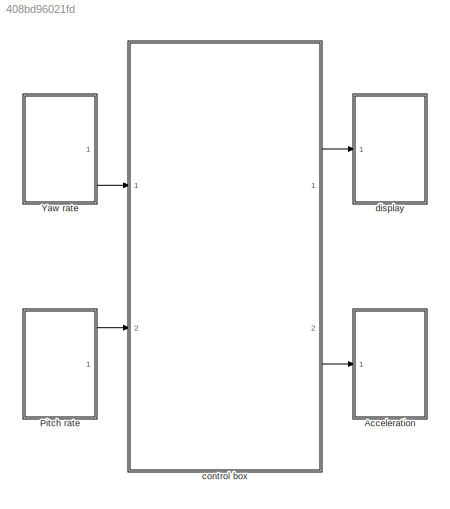
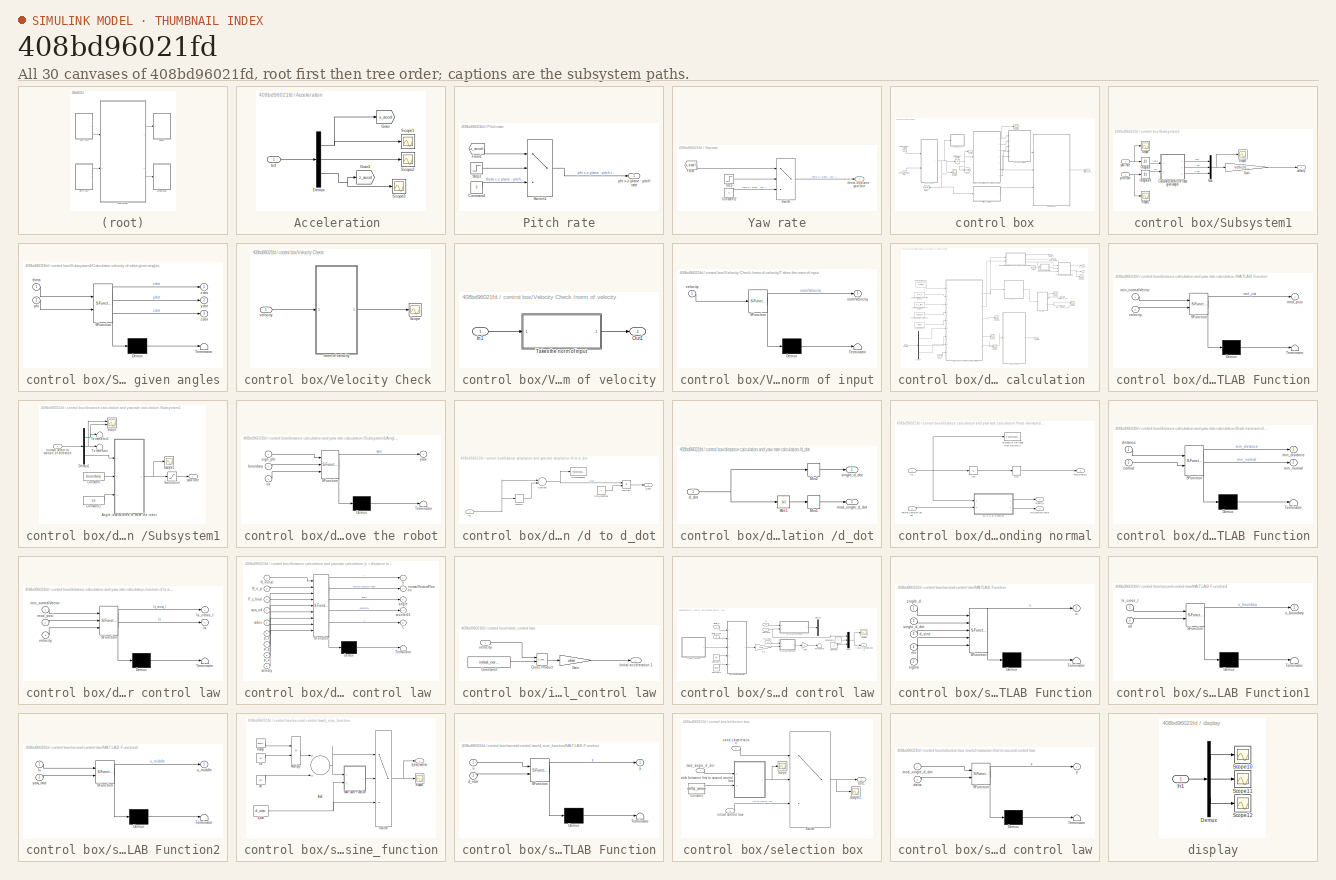
[diagram: thumbnail index - all 30 canvases of the model, root first then tree order]
MODEL slx_408bd96021fd
KIND model
CONFIG AbsTol = auto
CONFIG EnableMultiTasking = off
CONFIG FixedStep = 0.1
CONFIG MaxStep = auto
CONFIG MinStep = auto
CONFIG RelTol = 1e-3
CONFIG SampleTimeConstraint = Unconstrained
CONFIG Solver = FixedStepAuto
CONFIG SolverName = FixedStepAuto
CONFIG StartTime = 0.0
CONFIG StopTime = 50
BLOCK [SubSystem] Acceleration 
  Ports = [1]
  RequestExecContextInheritance = off
BLOCK [Demux] Acceleration /Demux
  DisplayOption = bar
  Outputs = 3
  Ports = [1, 3]
BLOCK [Goto] Acceleration /Goto
  GotoTag = x_accel
  TagVisibility = global
BLOCK [Goto] Acceleration /Goto1
  GotoTag = z_accel
  TagVisibility = global
BLOCK [Inport] Acceleration /In1
  IconDisplay = Port number
BLOCK [Scope] Acceleration /Scope1
  Floating = off
  NumInputPorts = 1
  Ports = [1]
  ScopeSpecificationString = Simulink.scopes.TimeScopeBlockCfg('CurrentConfiguration', extmgr.ConfigurationSet(extmgr.Configuration('Core','General UI',true),extmgr.Configuration('Core','Source UI',true),extmgr.Configuration('Sources','WiredSimulink',true,'DataLoggingVariableName','ScopeData1','DataLogging',true,'DataLoggingSaveFormat','StructureWithTime'),extmgr.Configuration('Visuals','Time Domain',true,'SerializedDisplays'...<+1502ch>
BLOCK [Scope] Acceleration /Scope2
  Floating = off
  NumInputPorts = 1
  Ports = [1]
  ScopeSpecificationString = Simulink.scopes.TimeScopeBlockCfg('CurrentConfiguration', extmgr.ConfigurationSet(extmgr.Configuration('Core','General UI',true),extmgr.Configuration('Core','Source UI',true),extmgr.Configuration('Sources','WiredSimulink',true,'DataLoggingVariableName','ScopeData2','DataLogging',true,'DataLoggingSaveFormat','StructureWithTime'),extmgr.Configuration('Visuals','Time Domain',true,'SerializedDisplays'...<+1520ch>
BLOCK [Scope] Acceleration /Scope3
  Floating = off
  NumInputPorts = 1
  Ports = [1]
  ScopeSpecificationString = Simulink.scopes.TimeScopeBlockCfg('CurrentConfiguration', extmgr.ConfigurationSet(extmgr.Configuration('Core','General UI',true),extmgr.Configuration('Core','Source UI',true),extmgr.Configuration('Sources','WiredSimulink',true,'DataLoggingVariableName','ScopeData3','DataLogging',true,'DataLoggingSaveFormat','StructureWithTime'),extmgr.Configuration('Visuals','Time Domain',true,'SerializedDisplays'...<+1514ch>
BLOCK [SubSystem] Pitch rate
  Ports = [0, 1]
  RequestExecContextInheritance = off
BLOCK [Constant] Pitch rate/Constant4
  Value = 0
BLOCK [From] Pitch rate/From1
  GotoTag = z_accel
  TagVisibility = global
BLOCK [Step] Pitch rate/Step1
  SampleTime = 0
  Time = 0.1
BLOCK [Switch] Pitch rate/Switch1
  Criteria = u2 > Threshold
  InputSameDT = off
  SaturateOnIntegerOverflow = off
BLOCK [Outport] Pitch rate/phi x-z plane : pitch rate
  IconDisplay = Port number
  VectorParamsAs1DForOutWhenUnconnected = off
BLOCK [SubSystem] Yaw rate
  Ports = [0, 1]
  RequestExecContextInheritance = off
BLOCK [Constant] Yaw rate/Constant2
  Value = 0
BLOCK [From] Yaw rate/From
  GotoTag = x_accel
  TagVisibility = global
BLOCK [Step] Yaw rate/Step
  SampleTime = 0
  Time = 0.1
BLOCK [Switch] Yaw rate/Switch
  Criteria = u2 > Threshold
  InputSameDT = off
  SaturateOnIntegerOverflow = off
BLOCK [Outport] Yaw rate/theta x-y plane : yaw rate
  IconDisplay = Port number
  VectorParamsAs1DForOutWhenUnconnected = off
BLOCK [SubSystem] control box
  Ports = [2, 2]
  RequestExecContextInheritance = off
BLOCK [Goto] control box/Goto
  GotoTag = position
  TagVisibility = global
BLOCK [Goto] control box/Goto1
  GotoTag = velocity
  TagVisibility = global
BLOCK [Integrator] control box/Integrate to get position
  InitialCondition = [x_0 z_0 y_0]
  Ports = [1, 1]
BLOCK [Outport] control box/Position
  IconDisplay = Port number
  VectorParamsAs1DForOutWhenUnconnected = off
BLOCK [Scope] control box/Scope
  Floating = off
  NumInputPorts = 1
  Ports = [1]
  ScopeSpecificationString = Simulink.scopes.TimeScopeBlockCfg('CurrentConfiguration', extmgr.ConfigurationSet(extmgr.Configuration('Core','General UI',true),extmgr.Configuration('Core','Source UI',true),extmgr.Configuration('Sources','WiredSimulink',true,'DataLoggingVariableName','ScopeData1'),extmgr.Configuration('Visuals','Time Domain',true,'SerializedDisplays',{struct('MinYLimReal','-1.24952','MaxYLimReal','1.24995','YLab...<+1393ch>
BLOCK [Scope] control box/Scope1
  Floating = off
  NumInputPorts = 1
  Ports = [1]
  ScopeSpecificationString = Simulink.scopes.TimeScopeBlockCfg('CurrentConfiguration', extmgr.ConfigurationSet(extmgr.Configuration('Core','General UI',true),extmgr.Configuration('Core','Source UI',true),extmgr.Configuration('Sources','WiredSimulink',true,'DataLoggingVariableName','ScopeData4'),extmgr.Configuration('Visuals','Time Domain',true,'SerializedDisplays',{struct('MinYLimReal','-27.05579','MaxYLimReal','11.13193','YL...<+1523ch>
BLOCK [SubSystem] control box/Subsystem1
  Ports = [2, 1]
  RequestExecContextInheritance = off
BLOCK [SubSystem] control box/Subsystem1/Calculates velocity of robot given angles
  ErrorFcn = Stateflow.Translate.translate
  PermitHierarchicalResolution = ExplicitOnly
  Ports = [2, 3]
  RequestExecContextInheritance = off
  SFBlockType = MATLAB Function
  TreatAsAtomicUnit = on
BLOCK [Demux] control box/Subsystem1/Calculates velocity of robot given angles/ Demux 
  Outputs = 1
  Ports = [1, 1]
BLOCK [S-Function] control box/Subsystem1/Calculates velocity of robot given angles/ SFunction 
  EnableBusSupport = on
  FunctionName = sf_sfun
  PortCounts = [2 4]
  Ports = [2, 4]
  SFcnIsStateOwnerBlock = off
  SFunctionDeploymentMode = off
  Tag = Stateflow S-Function test_01_3d_veh_piby567_2018 4
BLOCK [Terminator] control box/Subsystem1/Calculates velocity of robot given angles/ Terminator 
BLOCK [Inport] control box/Subsystem1/Calculates velocity of robot given angles/phi
  IconDisplay = Port number
  Port = 2
BLOCK [Inport] control box/Subsystem1/Calculates velocity of robot given angles/theta
  IconDisplay = Port number
BLOCK [Outport] control box/Subsystem1/Calculates velocity of robot given angles/xdot
  IconDisplay = Port number
BLOCK [Outport] control box/Subsystem1/Calculates velocity of robot given angles/ydot
  IconDisplay = Port number
  Port = 2
BLOCK [Outport] control box/Subsystem1/Calculates velocity of robot given angles/zdot
  IconDisplay = Port number
  Port = 3
BLOCK [Gain] control box/Subsystem1/Gain
  Gain = vehicle_velocity
  OutDataTypeStr = Inherit: Inherit via internal rule
  ParamDataTypeStr = Inherit: Inherit via internal rule
  SaturateOnIntegerOverflow = off
BLOCK [Integrator] control box/Subsystem1/Integrator
  Ports = [1, 1]
BLOCK [Integrator] control box/Subsystem1/Integrator4
  Ports = [1, 1]
BLOCK [Mux] control box/Subsystem1/Mux
  DisplayOption = bar
  Inputs = 3
  Ports = [3, 1]
BLOCK [Scope] control box/Subsystem1/Scope
  Floating = off
  NumInputPorts = 1
  Ports = [1]
  ScopeSpecificationString = Simulink.scopes.TimeScopeBlockCfg('CurrentConfiguration', extmgr.ConfigurationSet(extmgr.Configuration('Core','General UI',true),extmgr.Configuration('Core','Source UI',true),extmgr.Configuration('Sources','WiredSimulink',true,'DataLoggingVariableName','ScopeData6'),extmgr.Configuration('Visuals','Time Domain',true,'SerializedDisplays',{struct('MinYLimReal','-1.25','MaxYLimReal','1.25','YLabelReal...<+1350ch>
BLOCK [Scope] control box/Subsystem1/Scope1
  Floating = off
  NumInputPorts = 1
  Ports = [1]
  ScopeSpecificationString = Simulink.scopes.TimeScopeBlockCfg('CurrentConfiguration', extmgr.ConfigurationSet(extmgr.Configuration('Core','General UI',true),extmgr.Configuration('Core','Source UI',true),extmgr.Configuration('Sources','WiredSimulink',true,'DataLoggingVariableName','ScopeData7'),extmgr.Configuration('Visuals','Time Domain',true,'SerializedDisplays',{struct('MinYLimReal','-1.00000','MaxYLimReal','1.00000','YLab...<+1369ch>
BLOCK [Scope] control box/Subsystem1/Scope2
  Floating = off
  NumInputPorts = 1
  Ports = [1]
  ScopeSpecificationString = Simulink.scopes.TimeScopeBlockCfg('CurrentConfiguration', extmgr.ConfigurationSet(extmgr.Configuration('Core','General UI',true),extmgr.Configuration('Core','Source UI',true),extmgr.Configuration('Sources','WiredSimulink',true,'DataLoggingVariableName','ScopeData1'),extmgr.Configuration('Visuals','Time Domain',true,'SerializedDisplays',{struct('MinYLimReal','-1.24975','MaxYLimReal','1.24997','YLab...<+1402ch>
BLOCK [Inport] control box/Subsystem1/pitch rate
  IconDisplay = Port number
  Port = 2
BLOCK [Outport] control box/Subsystem1/velocity
  IconDisplay = Port number
  VectorParamsAs1DForOutWhenUnconnected = off
BLOCK [Inport] control box/Subsystem1/yaw rate 
  IconDisplay = Port number
BLOCK [SubSystem] control box/Velocity Check 
  Ports = [1]
  RequestExecContextInheritance = off
BLOCK [Scope] control box/Velocity Check /Scope
  Floating = off
  NumInputPorts = 1
  Ports = [1]
  ScopeSpecificationString = Simulink.scopes.TimeScopeBlockCfg('CurrentConfiguration', extmgr.ConfigurationSet(extmgr.Configuration('Core','General UI',true),extmgr.Configuration('Core','Source UI',true),extmgr.Configuration('Sources','WiredSimulink',true),extmgr.Configuration('Visuals','Time Domain',true,'SerializedDisplays',{struct('MinYLimReal','0.9','MaxYLimReal','2.00000','YLabelReal','','MinYLimMag','0.9','MaxYLimMag','...<+1398ch>
BLOCK [SubSystem] control box/Velocity Check /norm of velocity
  Ports = [1, 1]
  RequestExecContextInheritance = off
BLOCK [Inport] control box/Velocity Check /norm of velocity/In1
  IconDisplay = Port number
BLOCK [Outport] control box/Velocity Check /norm of velocity/Out1
  IconDisplay = Port number
  VectorParamsAs1DForOutWhenUnconnected = off
BLOCK [SubSystem] control box/Velocity Check /norm of velocity/Takes the norm of input
  ErrorFcn = Stateflow.Translate.translate
  PermitHierarchicalResolution = ExplicitOnly
  Ports = [1, 1]
  RequestExecContextInheritance = off
  SFBlockType = MATLAB Function
  TreatAsAtomicUnit = on
BLOCK [Demux] control box/Velocity Check /norm of velocity/Takes the norm of input/ Demux 
  Outputs = 1
  Ports = [1, 1]
BLOCK [S-Function] control box/Velocity Check /norm of velocity/Takes the norm of input/ SFunction 
  EnableBusSupport = on
  FunctionName = sf_sfun
  PortCounts = [1 2]
  Ports = [1, 2]
  SFcnIsStateOwnerBlock = off
  SFunctionDeploymentMode = off
  Tag = Stateflow S-Function test_01_3d_veh_piby567_2018 8
BLOCK [Terminator] control box/Velocity Check /norm of velocity/Takes the norm of input/ Terminator 
BLOCK [Outport] control box/Velocity Check /norm of velocity/Takes the norm of input/normVelocity
  IconDisplay = Port number
BLOCK [Inport] control box/Velocity Check /norm of velocity/Takes the norm of input/velocity
  IconDisplay = Port number
BLOCK [Inport] control box/Velocity Check /velocity
  IconDisplay = Port number
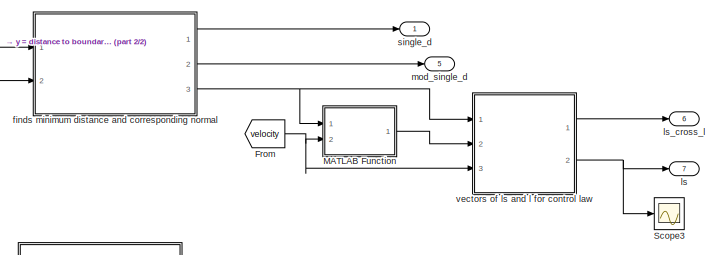
[diagram: control box/distance calculation and yaw rate calculation  - part 1/2, top right region]
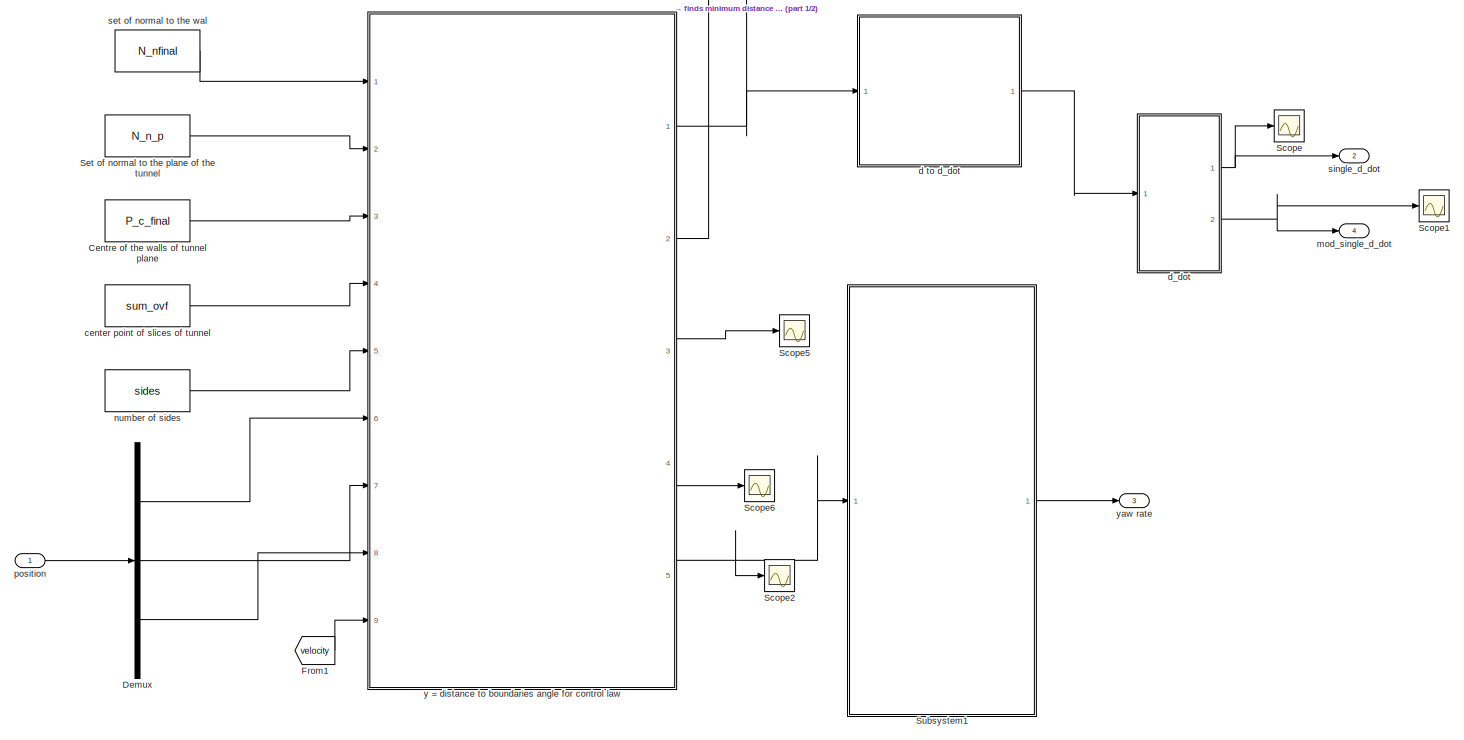
[diagram: control box/distance calculation and yaw rate calculation  - part 2/2, most of the canvas]
BLOCK [SubSystem] control box/distance calculation and yaw rate calculation 
  Ports = [1, 7]
  RequestExecContextInheritance = off
BLOCK [Constant] control box/distance calculation and yaw rate calculation /Centre of the walls of tunnel plane
  Value = P_c_final
  VectorParams1D = off
BLOCK [Demux] control box/distance calculation and yaw rate calculation /Demux
  DisplayOption = bar
  Outputs = 3
  Ports = [1, 3]
BLOCK [From] control box/distance calculation and yaw rate calculation /From
  GotoTag = velocity
  TagVisibility = global
BLOCK [From] control box/distance calculation and yaw rate calculation /From1
  GotoTag = velocity
  TagVisibility = global
BLOCK [SubSystem] control box/distance calculation and yaw rate calculation /MATLAB Function
  ErrorFcn = Stateflow.Translate.translate
  PermitHierarchicalResolution = ExplicitOnly
  Ports = [2, 1]
  RequestExecContextInheritance = off
  SFBlockType = MATLAB Function
  TreatAsAtomicUnit = on
BLOCK [Demux] control box/distance calculation and yaw rate calculation /MATLAB Function/ Demux 
  Outputs = 1
  Ports = [1, 1]
BLOCK [S-Function] control box/distance calculation and yaw rate calculation /MATLAB Function/ SFunction 
  EnableBusSupport = on
  FunctionName = sf_sfun
  PortCounts = [2 2]
  Ports = [2, 2]
  SFcnIsStateOwnerBlock = off
  SFunctionDeploymentMode = off
  Tag = Stateflow S-Function test_01_3d_veh_piby567_2018 10
BLOCK [Terminator] control box/distance calculation and yaw rate calculation /MATLAB Function/ Terminator 
BLOCK [Inport] control box/distance calculation and yaw rate calculation /MATLAB Function/min_normalVector
  IconDisplay = Port number
BLOCK [Outport] control box/distance calculation and yaw rate calculation /MATLAB Function/mod_pssi
  IconDisplay = Port number
BLOCK [Inport] control box/distance calculation and yaw rate calculation /MATLAB Function/velocity
  IconDisplay = Port number
  Port = 2
BLOCK [Scope] control box/distance calculation and yaw rate calculation /Scope
  Floating = off
  NumInputPorts = 1
  Ports = [1]
  ScopeSpecificationString = Simulink.scopes.TimeScopeBlockCfg('CurrentConfiguration', extmgr.ConfigurationSet(extmgr.Configuration('Core','General UI',true),extmgr.Configuration('Core','Source UI',true),extmgr.Configuration('Sources','WiredSimulink',true,'DataLoggingVariableName','ScopeData10'),extmgr.Configuration('Visuals','Time Domain',true,'SerializedDisplays',{struct('MinYLimReal','-1.02312','MaxYLimReal','8.23941','YLa...<+1466ch>
BLOCK [Scope] control box/distance calculation and yaw rate calculation /Scope1
  Floating = off
  NumInputPorts = 1
  Ports = [1]
  ScopeSpecificationString = Simulink.scopes.TimeScopeBlockCfg('CurrentConfiguration', extmgr.ConfigurationSet(extmgr.Configuration('Core','General UI',true),extmgr.Configuration('Core','Source UI',true),extmgr.Configuration('Sources','WiredSimulink',true,'DataLoggingVariableName','ScopeData12'),extmgr.Configuration('Visuals','Time Domain',true,'SerializedDisplays',{struct('MinYLimReal','-0.11508','MaxYLimReal','1.03759','YLa...<+1367ch>
BLOCK [Scope] control box/distance calculation and yaw rate calculation /Scope2
  Floating = off
  NumInputPorts = 1
  Ports = [1]
  ScopeSpecificationString = Simulink.scopes.TimeScopeBlockCfg('CurrentConfiguration', extmgr.ConfigurationSet(extmgr.Configuration('Core','General UI',true),extmgr.Configuration('Core','Source UI',true),extmgr.Configuration('Sources','WiredSimulink',true,'DataLoggingVariableName','ScopeData1'),extmgr.Configuration('Visuals','Time Domain',true,'SerializedDisplays',{struct('MinYLimReal','-0.11388','MaxYLimReal','0.29878','YLab...<+1689ch>
BLOCK [Scope] control box/distance calculation and yaw rate calculation /Scope3
  Floating = off
  NumInputPorts = 1
  Ports = [1]
  ScopeSpecificationString = Simulink.scopes.TimeScopeBlockCfg('CurrentConfiguration', extmgr.ConfigurationSet(extmgr.Configuration('Core','General UI',true),extmgr.Configuration('Core','Source UI',true),extmgr.Configuration('Sources','WiredSimulink',true,'DataLoggingVariableName','ScopeData2'),extmgr.Configuration('Visuals','Time Domain',true,'SerializedDisplays',{struct('MinYLimReal','-1.22872','MaxYLimReal','1.16477','YLab...<+1485ch>
BLOCK [Scope] control box/distance calculation and yaw rate calculation /Scope5
  Floating = off
  NumInputPorts = 1
  Ports = [1]
  ScopeSpecificationString = Simulink.scopes.TimeScopeBlockCfg('CurrentConfiguration', extmgr.ConfigurationSet(extmgr.Configuration('Core','General UI',true),extmgr.Configuration('Core','Source UI',true),extmgr.Configuration('Sources','WiredSimulink',true,'DataLoggingVariableName','ScopeData31'),extmgr.Configuration('Visuals','Time Domain',true,'SerializedDisplays',{struct('MinYLimReal','-0.19635','MaxYLimReal','1.76715','YLa...<+1478ch>
BLOCK [Scope] control box/distance calculation and yaw rate calculation /Scope6
  Floating = off
  NumInputPorts = 1
  Ports = [1]
  ScopeSpecificationString = Simulink.scopes.TimeScopeBlockCfg('CurrentConfiguration', extmgr.ConfigurationSet(extmgr.Configuration('Core','General UI',true),extmgr.Configuration('Core','Source UI',true),extmgr.Configuration('Sources','WiredSimulink',true,'DataLoggingVariableName','ScopeData32'),extmgr.Configuration('Visuals','Time Domain',true,'SerializedDisplays',{struct('MinYLimReal','0.9','MaxYLimReal','1.1','YLabelReal',...<+1480ch>
BLOCK [Constant] control box/distance calculation and yaw rate calculation /Set of normal to the plane of the tunnel
  Value = N_n_p
  VectorParams1D = off
BLOCK [SubSystem] control box/distance calculation and yaw rate calculation /Subsystem1
  Ports = [1, 1]
  RequestExecContextInheritance = off
BLOCK [SubSystem] control box/distance calculation and yaw rate calculation /Subsystem1/Angle is calculated to move the robot
  ErrorFcn = Stateflow.Translate.translate
  PermitHierarchicalResolution = ExplicitOnly
  Ports = [3, 1]
  RequestExecContextInheritance = off
  SFBlockType = MATLAB Function
  TreatAsAtomicUnit = on
BLOCK [Demux] control box/distance calculation and yaw rate calculation /Subsystem1/Angle is calculated to move the robot/ Demux 
  Outputs = 1
  Ports = [1, 1]
BLOCK [S-Function] control box/distance calculation and yaw rate calculation /Subsystem1/Angle is calculated to move the robot/ SFunction 
  EnableBusSupport = on
  FunctionName = sf_sfun
  PortCounts = [3 2]
  Ports = [3, 2]
  SFcnIsStateOwnerBlock = off
  SFunctionDeploymentMode = off
  Tag = Stateflow S-Function test_01_3d_veh_piby567_2018 7
BLOCK [Terminator] control box/distance calculation and yaw rate calculation /Subsystem1/Angle is calculated to move the robot/ Terminator 
BLOCK [Inport] control box/distance calculation and yaw rate calculation /Subsystem1/Angle is calculated to move the robot/boundary
  IconDisplay = Port number
  Port = 2
BLOCK [Inport] control box/distance calculation and yaw rate calculation /Subsystem1/Angle is calculated to move the robot/sign_phi
  IconDisplay = Port number
BLOCK [Inport] control box/distance calculation and yaw rate calculation /Subsystem1/Angle is calculated to move the robot/us
  IconDisplay = Port number
  Port = 3
BLOCK [Outport] control box/distance calculation and yaw rate calculation /Subsystem1/Angle is calculated to move the robot/yaw
  IconDisplay = Port number
  VectorParamsAs1DForOutWhenUnconnected = off
BLOCK [Constant] control box/distance calculation and yaw rate calculation /Subsystem1/Constant
  Value = boundary
BLOCK [Constant] control box/distance calculation and yaw rate calculation /Subsystem1/Constant1
  Value = us
BLOCK [Demux] control box/distance calculation and yaw rate calculation /Subsystem1/Demux1
  DisplayOption = bar
  Outputs = 3
  Ports = [1, 3]
BLOCK [Saturate] control box/distance calculation and yaw rate calculation /Subsystem1/Saturation
  InputPortMap = u0
  LowerLimit = -us
  Ports = [1, 1]
  UpperLimit = us
BLOCK [Scope] control box/distance calculation and yaw rate calculation /Subsystem1/Scope
  Floating = off
  NumInputPorts = 2
  Ports = [2]
  ScopeSpecificationString = Simulink.scopes.TimeScopeBlockCfg('CurrentConfiguration', extmgr.ConfigurationSet(extmgr.Configuration('Core','General UI',true),extmgr.Configuration('Core','Source UI',true),extmgr.Configuration('Sources','WiredSimulink',true,'DataLoggingVariableName','ScopeData1'),extmgr.Configuration('Visuals','Time Domain',true,'SerializedDisplays',{struct('MinYLimReal','-1.00000','MaxYLimReal','1.00000','YLab...<+1401ch>
BLOCK [Scope] control box/distance calculation and yaw rate calculation /Subsystem1/Scope1
  Floating = off
  NumInputPorts = 1
  Ports = [1]
  ScopeSpecificationString = Simulink.scopes.TimeScopeBlockCfg('CurrentConfiguration', extmgr.ConfigurationSet(extmgr.Configuration('Core','General UI',true),extmgr.Configuration('Core','Source UI',true),extmgr.Configuration('Sources','WiredSimulink',true,'DataLoggingVariableName','ScopeData2'),extmgr.Configuration('Visuals','Time Domain',true,'SerializedDisplays',{struct('MinYLimReal','-2.52847','MaxYLimReal','0.87437','YLab...<+1421ch>
BLOCK [Terminator] control box/distance calculation and yaw rate calculation /Subsystem1/Terminator
BLOCK [Terminator] control box/distance calculation and yaw rate calculation /Subsystem1/Terminator1
BLOCK [Inport] control box/distance calculation and yaw rate calculation /Subsystem1/normal vector to motion of direction
  IconDisplay = Port number
BLOCK [Outport] control box/distance calculation and yaw rate calculation /Subsystem1/yaw rate
  IconDisplay = Port number
  VectorParamsAs1DForOutWhenUnconnected = off
BLOCK [Constant] control box/distance calculation and yaw rate calculation /center point of slices of tunnel
  Value = sum_ovf
  VectorParams1D = off
BLOCK [SubSystem] control box/distance calculation and yaw rate calculation /d to d_dot
  Ports = [1, 1]
  RequestExecContextInheritance = off
BLOCK [Inport] control box/distance calculation and yaw rate calculation /d to d_dot/In1
  IconDisplay = Port number
BLOCK [Memory] control box/distance calculation and yaw rate calculation /d to d_dot/Memory
BLOCK [Product] control box/distance calculation and yaw rate calculation /d to d_dot/Multiply
  InputSameDT = off
  OutDataTypeStr = Inherit: Inherit via internal rule
  Ports = [2, 1]
  RndMeth = Floor
  SaturateOnIntegerOverflow = off
BLOCK [Sum] control box/distance calculation and yaw rate calculation /d to d_dot/Subtract
  InputSameDT = off
  Inputs = +-
  OutDataTypeStr = Inherit: Inherit via internal rule
  Ports = [2, 1]
  SaturateOnIntegerOverflow = off
BLOCK [ToWorkspace] control box/distance calculation and yaw rate calculation /d to d_dot/To Workspace1
  FixptAsFi = on
  MaxDataPoints = inf
  Ports = [1]
  SampleTime = -1
  SaveFormat = Timeseries
  VariableName = simout1
BLOCK [Outport] control box/distance calculation and yaw rate calculation /d to d_dot/d_dot
  IconDisplay = Port number
  VectorParamsAs1DForOutWhenUnconnected = off
BLOCK [Constant] control box/distance calculation and yaw rate calculation /d to d_dot/time_constant
BLOCK [SubSystem] control box/distance calculation and yaw rate calculation /d_dot
  Ports = [1, 2]
  RequestExecContextInheritance = off
BLOCK [Abs] control box/distance calculation and yaw rate calculation /d_dot/Abs1
  SaturateOnIntegerOverflow = off
BLOCK [MinMax] control box/distance calculation and yaw rate calculation /d_dot/Min1
  InputSameDT = off
  Ports = [1, 1]
  SaturateOnIntegerOverflow = off
BLOCK [MinMax] control box/distance calculation and yaw rate calculation /d_dot/Min2
  InputSameDT = off
  Ports = [1, 1]
  SaturateOnIntegerOverflow = off
BLOCK [Inport] control box/distance calculation and yaw rate calculation /d_dot/d_dot
  IconDisplay = Port number
BLOCK [Outport] control box/distance calculation and yaw rate calculation /d_dot/mod_single_d_dot
  IconDisplay = Port number
  Port = 2
  VectorParamsAs1DForOutWhenUnconnected = off
BLOCK [Outport] control box/distance calculation and yaw rate calculation /d_dot/single_d_dot
  IconDisplay = Port number
  VectorParamsAs1DForOutWhenUnconnected = off
BLOCK [SubSystem] control box/distance calculation and yaw rate calculation /finds minimum distance and corresponding normal
  Ports = [2, 3]
  RequestExecContextInheritance = off
BLOCK [Abs] control box/distance calculation and yaw rate calculation /finds minimum distance and corresponding normal/Abs
  SaturateOnIntegerOverflow = off
BLOCK [Inport] control box/distance calculation and yaw rate calculation /finds minimum distance and corresponding normal/In1
  IconDisplay = Port number
BLOCK [SubSystem] control box/distance calculation and yaw rate calculation /finds minimum distance and corresponding normal/MATLAB Function
  ErrorFcn = Stateflow.Translate.translate
  PermitHierarchicalResolution = ExplicitOnly
  Ports = [2, 2]
  RequestExecContextInheritance = off
  SFBlockType = MATLAB Function
  TreatAsAtomicUnit = on
BLOCK [Demux] control box/distance calculation and yaw rate calculation /finds minimum distance and corresponding normal/MATLAB Function/ Demux 
  Outputs = 1
  Ports = [1, 1]
BLOCK [S-Function] control box/distance calculation and yaw rate calculation /finds minimum distance and corresponding normal/MATLAB Function/ SFunction 
  EnableBusSupport = on
  FunctionName = sf_sfun
  PortCounts = [2 3]
  Ports = [2, 3]
  SFcnIsStateOwnerBlock = off
  SFunctionDeploymentMode = off
  Tag = Stateflow S-Function test_01_3d_veh_piby567_2018 9
BLOCK [Terminator] control box/distance calculation and yaw rate calculation /finds minimum distance and corresponding normal/MATLAB Function/ Terminator 
BLOCK [Inport] control box/distance calculation and yaw rate calculation /finds minimum distance and corresponding normal/MATLAB Function/distance
  IconDisplay = Port number
BLOCK [Outport] control box/distance calculation and yaw rate calculation /finds minimum distance and corresponding normal/MATLAB Function/min_distance
  IconDisplay = Port number
BLOCK [Outport] control box/distance calculation and yaw rate calculation /finds minimum distance and corresponding normal/MATLAB Function/min_normal
  IconDisplay = Port number
  Port = 2
BLOCK [Inport] control box/distance calculation and yaw rate calculation /finds minimum distance and corresponding normal/MATLAB Function/normal
  IconDisplay = Port number
  Port = 2
BLOCK [MinMax] control box/distance calculation and yaw rate calculation /finds minimum distance and corresponding normal/Min
  InputSameDT = off
  Ports = [1, 1]
  SaturateOnIntegerOverflow = off
BLOCK [ToWorkspace] control box/distance calculation and yaw rate calculation /finds minimum distance and corresponding normal/distance of the robot from the walls
  FixptAsFi = on
  MaxDataPoints = inf
  Ports = [1]
  SampleTime = -1
  SaveFormat = Timeseries
  VariableName = simout
BLOCK [Outport] control box/distance calculation and yaw rate calculation /finds minimum distance and corresponding normal/min_normalVector
  IconDisplay = Port number
  Port = 3
  VectorParamsAs1DForOutWhenUnconnected = off
BLOCK [Outport] control box/distance calculation and yaw rate calculation /finds minimum distance and corresponding normal/mod_single_d
  IconDisplay = Port number
  Port = 2
  VectorParamsAs1DForOutWhenUnconnected = off
BLOCK [Inport] control box/distance calculation and yaw rate calculation /finds minimum distance and corresponding normal/normalVectorsPlanes
  IconDisplay = Port number
  Port = 2
BLOCK [Outport] control box/distance calculation and yaw rate calculation /finds minimum distance and corresponding normal/single_d
  IconDisplay = Port number
  VectorParamsAs1DForOutWhenUnconnected = off
BLOCK [Outport] control box/distance calculation and yaw rate calculation /ls
  IconDisplay = Port number
  Port = 7
BLOCK [Outport] control box/distance calculation and yaw rate calculation /ls_cross_l
  IconDisplay = Port number
  Port = 6
BLOCK [Outport] control box/distance calculation and yaw rate calculation /mod_single_d
  IconDisplay = Port number
  Port = 5
  VectorParamsAs1DForOutWhenUnconnected = off
BLOCK [Outport] control box/distance calculation and yaw rate calculation /mod_single_d_dot
  IconDisplay = Port number
  Port = 4
  VectorParamsAs1DForOutWhenUnconnected = off
BLOCK [Constant] control box/distance calculation and yaw rate calculation /number of sides
  Value = sides
BLOCK [Inport] control box/distance calculation and yaw rate calculation /position
  IconDisplay = Port number
BLOCK [Constant] control box/distance calculation and yaw rate calculation /set of normal to the wal
  Value = N_nfinal
  VectorParams1D = off
BLOCK [Outport] control box/distance calculation and yaw rate calculation /single_d
  IconDisplay = Port number
  VectorParamsAs1DForOutWhenUnconnected = off
BLOCK [Outport] control box/distance calculation and yaw rate calculation /single_d_dot
  IconDisplay = Port number
  Port = 2
  VectorParamsAs1DForOutWhenUnconnected = off
BLOCK [SubSystem] control box/distance calculation and yaw rate calculation /vectors of ls and l for control law
  ErrorFcn = Stateflow.Translate.translate
  PermitHierarchicalResolution = ExplicitOnly
  Ports = [3, 2]
  RequestExecContextInheritance = off
  SFBlockType = MATLAB Function
  TreatAsAtomicUnit = on
BLOCK [Demux] control box/distance calculation and yaw rate calculation /vectors of ls and l for control law/ Demux 
  Outputs = 1
  Ports = [1, 1]
BLOCK [S-Function] control box/distance calculation and yaw rate calculation /vectors of ls and l for control law/ SFunction 
  EnableBusSupport = on
  FunctionName = sf_sfun
  PortCounts = [3 3]
  Ports = [3, 3]
  SFcnIsStateOwnerBlock = off
  SFunctionDeploymentMode = off
  Tag = Stateflow S-Function test_01_3d_veh_piby567_2018 11
BLOCK [Terminator] control box/distance calculation and yaw rate calculation /vectors of ls and l for control law/ Terminator 
BLOCK [Outport] control box/distance calculation and yaw rate calculation /vectors of ls and l for control law/ls
  IconDisplay = Port number
  Port = 2
BLOCK [Outport] control box/distance calculation and yaw rate calculation /vectors of ls and l for control law/ls_cross_l
  IconDisplay = Port number
BLOCK [Inport] control box/distance calculation and yaw rate calculation /vectors of ls and l for control law/min_normalVector
  IconDisplay = Port number
BLOCK [Inport] control box/distance calculation and yaw rate calculation /vectors of ls and l for control law/mod_pssi
  IconDisplay = Port number
  Port = 2
BLOCK [Inport] control box/distance calculation and yaw rate calculation /vectors of ls and l for control law/velocity
  IconDisplay = Port number
  Port = 3
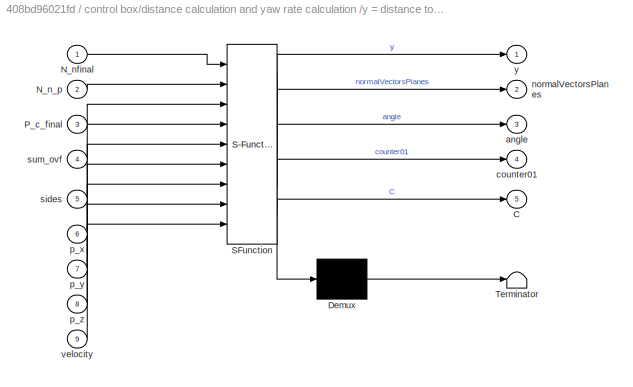
BLOCK [SubSystem] control box/distance calculation and yaw rate calculation /y = distance to boundaries angle for control law 
  ErrorFcn = Stateflow.Translate.translate
  PermitHierarchicalResolution = ExplicitOnly
  Ports = [9, 5]
  RequestExecContextInheritance = off
  SFBlockType = MATLAB Function
  TreatAsAtomicUnit = on
BLOCK [Demux] control box/distance calculation and yaw rate calculation /y = distance to boundaries angle for control law / Demux 
  Outputs = 1
  Ports = [1, 1]
BLOCK [S-Function] control box/distance calculation and yaw rate calculation /y = distance to boundaries angle for control law / SFunction 
  EnableBusSupport = on
  FunctionName = sf_sfun
  PortCounts = [9 6]
  Ports = [9, 6]
  SFcnIsStateOwnerBlock = off
  SFunctionDeploymentMode = off
  Tag = Stateflow S-Function test_01_3d_veh_piby567_2018 2
BLOCK [Terminator] control box/distance calculation and yaw rate calculation /y = distance to boundaries angle for control law / Terminator 
BLOCK [Outport] control box/distance calculation and yaw rate calculation /y = distance to boundaries angle for control law /C
  IconDisplay = Port number
  Port = 5
  VectorParamsAs1DForOutWhenUnconnected = off
BLOCK [Inport] control box/distance calculation and yaw rate calculation /y = distance to boundaries angle for control law /N_n_p
  IconDisplay = Port number
  Port = 2
BLOCK [Inport] control box/distance calculation and yaw rate calculation /y = distance to boundaries angle for control law /N_nfinal
  IconDisplay = Port number
BLOCK [Inport] control box/distance calculation and yaw rate calculation /y = distance to boundaries angle for control law /P_c_final
  IconDisplay = Port number
  Port = 3
BLOCK [Outport] control box/distance calculation and yaw rate calculation /y = distance to boundaries angle for control law /angle
  IconDisplay = Port number
  Port = 3
  VectorParamsAs1DForOutWhenUnconnected = off
BLOCK [Outport] control box/distance calculation and yaw rate calculation /y = distance to boundaries angle for control law /counter01
  IconDisplay = Port number
  Port = 4
  VectorParamsAs1DForOutWhenUnconnected = off
BLOCK [Outport] control box/distance calculation and yaw rate calculation /y = distance to boundaries angle for control law /normalVectorsPlanes
  IconDisplay = Port number
  Port = 2
BLOCK [Inport] control box/distance calculation and yaw rate calculation /y = distance to boundaries angle for control law /p_x
  IconDisplay = Port number
  Port = 6
BLOCK [Inport] control box/distance calculation and yaw rate calculation /y = distance to boundaries angle for control law /p_y
  IconDisplay = Port number
  Port = 7
BLOCK [Inport] control box/distance calculation and yaw rate calculation /y = distance to boundaries angle for control law /p_z
  IconDisplay = Port number
  Port = 8
BLOCK [Inport] control box/distance calculation and yaw rate calculation /y = distance to boundaries angle for control law /sides
  IconDisplay = Port number
  Port = 5
BLOCK [Inport] control box/distance calculation and yaw rate calculation /y = distance to boundaries angle for control law /sum_ovf
  IconDisplay = Port number
  Port = 4
BLOCK [Inport] control box/distance calculation and yaw rate calculation /y = distance to boundaries angle for control law /velocity
  IconDisplay = Port number
  Port = 9
BLOCK [Outport] control box/distance calculation and yaw rate calculation /y = distance to boundaries angle for control law /y
  IconDisplay = Port number
  VectorParamsAs1DForOutWhenUnconnected = off
BLOCK [Outport] control box/distance calculation and yaw rate calculation /yaw rate
  IconDisplay = Port number
  Port = 3
  VectorParamsAs1DForOutWhenUnconnected = off
BLOCK [SubSystem] control box/initial_control law
  Ports = [1, 1]
  RequestExecContextInheritance = off
BLOCK [Constant] control box/initial_control law/Constant2
  Value = initial_normal_vector'
BLOCK [Reference] control box/initial_control law/Cross Product  REF=vrlib/Utilities/Cross Product
  Ports = [2, 1]
  SourceBlock = vrlib/Utilities/Cross Product
  SourceProductBaseCode = SL
  SourceProductName = Simulink
  SourceType = Cross Product
BLOCK [Gain] control box/initial_control law/Gain
  Gain = ubar
  OutDataTypeStr = Inherit: Inherit via internal rule
  ParamDataTypeStr = Inherit: Inherit via internal rule
  SaturateOnIntegerOverflow = off
BLOCK [Outport] control box/initial_control law/Initial acceleration 1
  IconDisplay = Port number
  VectorParamsAs1DForOutWhenUnconnected = off
BLOCK [Inport] control box/initial_control law/velocity
  IconDisplay = Port number
BLOCK [Outport] control box/initial_x_acc
  IconDisplay = Port number
  Port = 2
  VectorParamsAs1DForOutWhenUnconnected = off
BLOCK [Inport] control box/phi x-z plane : pitch rate
  IconDisplay = Port number
  Port = 2
BLOCK [SubSystem] control box/second control law
  Ports = [5, 1]
  RequestExecContextInheritance = off
BLOCK [Constant] control box/second control law/Constant
  Value = 0
BLOCK [Constant] control box/second control law/Constant1
  Value = mu
BLOCK [Constant] control box/second control law/Constant2
  Value = sigma
BLOCK [Constant] control box/second control law/Constant3
  Value = 0
BLOCK [Demux] control box/second control law/Demux
  DisplayOption = bar
  Outputs = 3
  Ports = [1, 3]
BLOCK [Gain] control box/second control law/Gain
  Gain = 0
  OutDataTypeStr = Inherit: Inherit via internal rule
  ParamDataTypeStr = Inherit: Inherit via internal rule
  SaturateOnIntegerOverflow = off
BLOCK [SubSystem] control box/second control law/MATLAB Function
  ErrorFcn = Stateflow.Translate.translate
  PermitHierarchicalResolution = ExplicitOnly
  Ports = [5, 1]
  RequestExecContextInheritance = off
  SFBlockType = MATLAB Function
  TreatAsAtomicUnit = on
BLOCK [Demux] control box/second control law/MATLAB Function/ Demux 
  Outputs = 1
  Ports = [1, 1]
BLOCK [S-Function] control box/second control law/MATLAB Function/ SFunction 
  EnableBusSupport = on
  FunctionName = sf_sfun
  PortCounts = [5 2]
  Ports = [5, 2]
  SFcnIsStateOwnerBlock = off
  SFunctionDeploymentMode = off
  Tag = Stateflow S-Function test_01_3d_veh_piby567_2018 6
BLOCK [Terminator] control box/second control law/MATLAB Function/ Terminator 
BLOCK [Inport] control box/second control law/MATLAB Function/d_sine
  IconDisplay = Port number
  Port = 3
BLOCK [Inport] control box/second control law/MATLAB Function/mu
  IconDisplay = Port number
  Port = 4
BLOCK [Inport] control box/second control law/MATLAB Function/sigma
  IconDisplay = Port number
  Port = 5
BLOCK [Inport] control box/second control law/MATLAB Function/single_d
  IconDisplay = Port number
BLOCK [Inport] control box/second control law/MATLAB Function/single_d_dot
  IconDisplay = Port number
  Port = 2
BLOCK [Outport] control box/second control law/MATLAB Function/u
  IconDisplay = Port number
BLOCK [SubSystem] control box/second control law/MATLAB Function1
  ErrorFcn = Stateflow.Translate.translate
  PermitHierarchicalResolution = ExplicitOnly
  Ports = [2, 1]
  RequestExecContextInheritance = off
  SFBlockType = MATLAB Function
  TreatAsAtomicUnit = on
BLOCK [Demux] control box/second control law/MATLAB Function1/ Demux 
  Outputs = 1
  Ports = [1, 1]
BLOCK [S-Function] control box/second control law/MATLAB Function1/ SFunction 
  EnableBusSupport = on
  FunctionName = sf_sfun
  PortCounts = [2 2]
  Ports = [2, 2]
  SFcnIsStateOwnerBlock = off
  SFunctionDeploymentMode = off
  Tag = Stateflow S-Function test_01_3d_veh_piby567_2018 12
BLOCK [Terminator] control box/second control law/MATLAB Function1/ Terminator 
BLOCK [Inport] control box/second control law/MATLAB Function1/ls_cross_l
  IconDisplay = Port number
BLOCK [Outport] control box/second control law/MATLAB Function1/u_boundary
  IconDisplay = Port number
BLOCK [Inport] control box/second control law/MATLAB Function1/ud
  IconDisplay = Port number
  Port = 2
BLOCK [SubSystem] control box/second control law/MATLAB Function2
  Commented = on
  ErrorFcn = Stateflow.Translate.translate
  PermitHierarchicalResolution = ExplicitOnly
  Ports = [2, 1]
  RequestExecContextInheritance = off
  SFBlockType = MATLAB Function
  TreatAsAtomicUnit = on
BLOCK [Demux] control box/second control law/MATLAB Function2/ Demux 
  Outputs = 1
  Ports = [1, 1]
BLOCK [S-Function] control box/second control law/MATLAB Function2/ SFunction 
  EnableBusSupport = on
  FunctionName = sf_sfun
  PortCounts = [2 2]
  Ports = [2, 2]
  SFcnIsStateOwnerBlock = off
  SFunctionDeploymentMode = off
  Tag = Stateflow S-Function 13
BLOCK [Terminator] control box/second control law/MATLAB Function2/ Terminator 
BLOCK [Inport] control box/second control law/MATLAB Function2/ls
  IconDisplay = Port number
BLOCK [Outport] control box/second control law/MATLAB Function2/u_middle
  IconDisplay = Port number
BLOCK [Inport] control box/second control law/MATLAB Function2/yaw_rate
  IconDisplay = Port number
  Port = 2
BLOCK [Mux] control box/second control law/Mux
  DisplayOption = bar
  Inputs = 3
  Ports = [3, 1]
BLOCK [Scope] control box/second control law/Scope
  Floating = off
  NumInputPorts = 1
  Ports = [1]
  ScopeSpecificationString = Simulink.scopes.TimeScopeBlockCfg('CurrentConfiguration', extmgr.ConfigurationSet(extmgr.Configuration('Core','General UI',true),extmgr.Configuration('Core','Source UI',true),extmgr.Configuration('Sources','WiredSimulink',true,'DataLoggingVariableName','ScopeData3'),extmgr.Configuration('Visuals','Time Domain',true,'SerializedDisplays',{struct('MinYLimReal','-1.25','MaxYLimReal','1.25','YLabelReal...<+1463ch>
BLOCK [Terminator] control box/second control law/Terminator
BLOCK [SubSystem] control box/second control law/d_sine_function
  Ports = [0, 1]
  RequestExecContextInheritance = off
BLOCK [Sum] control box/second control law/d_sine_function/Add
  InputSameDT = off
  OutDataTypeStr = Inherit: Inherit via internal rule
  Ports = [2, 1]
  SaturateOnIntegerOverflow = off
BLOCK [SubSystem] control box/second control law/d_sine_function/MATLAB Function
  ErrorFcn = Stateflow.Translate.translate
  PermitHierarchicalResolution = ExplicitOnly
  Ports = [2, 1]
  RequestExecContextInheritance = off
  SFBlockType = MATLAB Function
  TreatAsAtomicUnit = on
BLOCK [Demux] control box/second control law/d_sine_function/MATLAB Function/ Demux 
  Outputs = 1
  Ports = [1, 1]
BLOCK [S-Function] control box/second control law/d_sine_function/MATLAB Function/ SFunction 
  EnableBusSupport = on
  FunctionName = sf_sfun
  PortCounts = [2 2]
  Ports = [2, 2]
  SFcnIsStateOwnerBlock = off
  SFunctionDeploymentMode = off
  Tag = Stateflow S-Function test_01_3d_veh_piby567_2018 1
BLOCK [Terminator] control box/second control law/d_sine_function/MATLAB Function/ Terminator 
BLOCK [Inport] control box/second control law/d_sine_function/MATLAB Function/d_star
  IconDisplay = Port number
  Port = 2
BLOCK [Inport] control box/second control law/d_sine_function/MATLAB Function/u
  IconDisplay = Port number
BLOCK [Outport] control box/second control law/d_sine_function/MATLAB Function/y
  IconDisplay = Port number
  VectorParamsAs1DForOutWhenUnconnected = off
BLOCK [Product] control box/second control law/d_sine_function/Multiply
  InputSameDT = off
  OutDataTypeStr = Inherit: Inherit via internal rule
  Ports = [2, 1]
  RndMeth = Floor
  SaturateOnIntegerOverflow = off
BLOCK [Reference] control box/second control law/d_sine_function/Ramp  REF=simulink/Sources/Ramp
  Ports = [0, 1]
  SourceBlock = simulink/Sources/Ramp
  SourceProductBaseCode = SL
  SourceProductName = Simulink
  SourceType = Ramp
BLOCK [Scope] control box/second control law/d_sine_function/Scope2
  Floating = off
  NumInputPorts = 1
  Ports = [1]
  ScopeSpecificationString = Simulink.scopes.TimeScopeBlockCfg('CurrentConfiguration', extmgr.ConfigurationSet(extmgr.Configuration('Core','General UI',true),extmgr.Configuration('Core','Source UI',true),extmgr.Configuration('Sources','WiredSimulink',true,'DataLoggingVariableName','ScopeData3'),extmgr.Configuration('Visuals','Time Domain',true,'SerializedDisplays',{struct('MinYLimReal','-0.2375','MaxYLimReal','8.1375','YLabel...<+1458ch>
BLOCK [Switch] control box/second control law/d_sine_function/Switch
  Criteria = u2 > Threshold
  InputSameDT = off
  SaturateOnIntegerOverflow = off
BLOCK [Constant] control box/second control law/d_sine_function/Vd
  Value = Vd
BLOCK [Outport] control box/second control law/d_sine_function/d_sine_function
  IconDisplay = Port number
  VectorParamsAs1DForOutWhenUnconnected = off
BLOCK [Constant] control box/second control law/d_sine_function/d_star
  Value = d_star
BLOCK [Constant] control box/second control law/d_sine_function/dtr
  Value = dtr
BLOCK [Inport] control box/second control law/ls
  IconDisplay = Port number
  Port = 5
BLOCK [Inport] control box/second control law/ls_cross_l
  IconDisplay = Port number
  Port = 4
BLOCK [Inport] control box/second control law/single_d
  IconDisplay = Port number
BLOCK [Inport] control box/second control law/single_d_dot
  IconDisplay = Port number
  Port = 2
BLOCK [Gain] control box/second control law/u_d
  Gain = Ud
  OutDataTypeStr = Inherit: Inherit via internal rule
  ParamDataTypeStr = Inherit: Inherit via internal rule
  SaturateOnIntegerOverflow = off
BLOCK [Outport] control box/second control law/x and z acceleration
  IconDisplay = Port number
  VectorParamsAs1DForOutWhenUnconnected = off
BLOCK [Inport] control box/second control law/yaw rate
  IconDisplay = Port number
  Port = 3
BLOCK [SubSystem] control box/selection box 
  Ports = [3, 1]
  RequestExecContextInheritance = off
BLOCK [Constant] control box/selection box /Constant
  Value = delta_arrow
BLOCK [Outport] control box/selection box /Out1
  IconDisplay = Port number
  VectorParamsAs1DForOutWhenUnconnected = off
BLOCK [Scope] control box/selection box /Scope
  Floating = off
  NumInputPorts = 1
  Ports = [1]
  ScopeSpecificationString = Simulink.scopes.TimeScopeBlockCfg('CurrentConfiguration', extmgr.ConfigurationSet(extmgr.Configuration('Core','General UI',true),extmgr.Configuration('Core','Source UI',true),extmgr.Configuration('Sources','WiredSimulink',true,'DataLoggingVariableName','ScopeData1'),extmgr.Configuration('Visuals','Time Domain',true,'SerializedDisplays',{struct('MinYLimReal','-0.125','MaxYLimReal','1.07159','YLabel...<+1441ch>
BLOCK [Scope] control box/selection box /Scope1
  Floating = off
  NumInputPorts = 1
  Ports = [1]
  ScopeSpecificationString = Simulink.scopes.TimeScopeBlockCfg('CurrentConfiguration', extmgr.ConfigurationSet(extmgr.Configuration('Core','General UI',true),extmgr.Configuration('Core','Source UI',true),extmgr.Configuration('Sources','WiredSimulink',true,'DataLoggingVariableName','Control','DataLogging',true,'DataLoggingSaveFormat','StructureWithTime'),extmgr.Configuration('Visuals','Time Domain',true,'SerializedDisplays',{s...<+1555ch>
BLOCK [Switch] control box/selection box /Switch
  Criteria = u2 > Threshold
  InputSameDT = off
  SaturateOnIntegerOverflow = off
BLOCK [Inport] control box/selection box /initial control law
  IconDisplay = Port number
  Port = 3
BLOCK [Inport] control box/selection box /mod_single_d_dot
  IconDisplay = Port number
  Port = 2
BLOCK [SubSystem] control box/selection box /switch between first to second control law
  ErrorFcn = Stateflow.Translate.translate
  PermitHierarchicalResolution = ExplicitOnly
  Ports = [2, 1]
  RequestExecContextInheritance = off
  SFBlockType = MATLAB Function
  TreatAsAtomicUnit = on
BLOCK [Demux] control box/selection box /switch between first to second control law/ Demux 
  Outputs = 1
  Ports = [1, 1]
BLOCK [S-Function] control box/selection box /switch between first to second control law/ SFunction 
  EnableBusSupport = on
  FunctionName = sf_sfun
  PortCounts = [2 2]
  Ports = [2, 2]
  SFcnIsStateOwnerBlock = off
  SFunctionDeploymentMode = off
  Tag = Stateflow S-Function test_01_3d_veh_piby567_2018 3
BLOCK [Terminator] control box/selection box /switch between first to second control law/ Terminator 
BLOCK [Inport] control box/selection box /switch between first to second control law/delta
  IconDisplay = Port number
  Port = 2
BLOCK [Inport] control box/selection box /switch between first to second control law/mod_single_d_dot
  IconDisplay = Port number
BLOCK [Outport] control box/selection box /switch between first to second control law/y
  IconDisplay = Port number
  VectorParamsAs1DForOutWhenUnconnected = off
BLOCK [Inport] control box/selection box /x and z acceleration
  IconDisplay = Port number
BLOCK [Inport] control box/theta x-y plane : yaw rate
  IconDisplay = Port number
BLOCK [SubSystem] display
  Ports = [1]
  RequestExecContextInheritance = off
BLOCK [Demux] display/Demux
  DisplayOption = bar
  Outputs = 3
  Ports = [1, 3]
BLOCK [Inport] display/In1
  IconDisplay = Port number
BLOCK [Scope] display/Scope10
  Floating = off
  NumInputPorts = 1
  Ports = [1]
  ScopeSpecificationString = Simulink.scopes.TimeScopeBlockCfg('CurrentConfiguration', extmgr.ConfigurationSet(extmgr.Configuration('Core','General UI',true),extmgr.Configuration('Core','Source UI',true),extmgr.Configuration('Sources','WiredSimulink',true,'DataLogging',true,'DataLoggingSaveFormat','StructureWithTime','DataLoggingVariableName','x_01'),extmgr.Configuration('Visuals','Time Domain',true,'SerializedDisplays',{stru...<+1486ch>
BLOCK [Scope] display/Scope11
  Floating = off
  NumInputPorts = 1
  Ports = [1]
  ScopeSpecificationString = Simulink.scopes.TimeScopeBlockCfg('CurrentConfiguration', extmgr.ConfigurationSet(extmgr.Configuration('Core','General UI',true),extmgr.Configuration('Core','Source UI',true),extmgr.Configuration('Sources','WiredSimulink',true,'DataLoggingVariableName','y_01','DataLogging',true,'DataLoggingSaveFormat','StructureWithTime'),extmgr.Configuration('Visuals','Time Domain',true,'SerializedDisplays',{stru...<+1489ch>
BLOCK [Scope] display/Scope12
  Floating = off
  NumInputPorts = 1
  Ports = [1]
  ScopeSpecificationString = Simulink.scopes.TimeScopeBlockCfg('CurrentConfiguration', extmgr.ConfigurationSet(extmgr.Configuration('Core','General UI',true),extmgr.Configuration('Core','Source UI',true),extmgr.Configuration('Sources','WiredSimulink',true,'DataLoggingVariableName','z_01','DataLogging',true,'DataLoggingSaveFormat','StructureWithTime'),extmgr.Configuration('Visuals','Time Domain',true,'SerializedDisplays',{stru...<+1487ch>
NET Acceleration /Demux:1 -> Acceleration /Goto:1, Acceleration /Scope1:1
LINE Acceleration /Demux:2 -> Acceleration /Scope2:1
NET Acceleration /Demux:3 -> Acceleration /Goto1:1, Acceleration /Scope3:1
LINE Acceleration /In1:1 -> Acceleration /Demux:1
LINE Pitch rate/Constant4:1 -> Pitch rate/Switch1:3
LINE Pitch rate/From1:1 -> Pitch rate/Switch1:1
LINE Pitch rate/Step1:1 -> Pitch rate/Switch1:2
LINE Pitch rate/Switch1:1 -> Pitch rate/phi x-z plane : pitch rate:1
LINE Pitch rate:1 -> control box:2
LINE Yaw rate/Constant2:1 -> Yaw rate/Switch:3
LINE Yaw rate/From:1 -> Yaw rate/Switch:1
LINE Yaw rate/Step:1 -> Yaw rate/Switch:2
LINE Yaw rate/Switch:1 -> Yaw rate/theta x-y plane : yaw rate:1
LINE Yaw rate:1 -> control box:1
NET control box/Integrate to get position:1 -> control box/Goto:1, control box/Position:1, control box/distance calculation and yaw rate calculation :1
LINE control box/Subsystem1/Calculates velocity of robot given angles:1 -> control box/Subsystem1/Mux:1
LINE control box/Subsystem1/Calculates velocity of robot given angles:2 -> control box/Subsystem1/Mux:2
LINE control box/Subsystem1/Calculates velocity of robot given angles:3 -> control box/Subsystem1/Mux:3
LINE control box/Subsystem1/Gain:1 -> control box/Subsystem1/velocity:1
LINE control box/Subsystem1/Integrator4:1 -> control box/Subsystem1/Calculates velocity of robot given angles:2
LINE control box/Subsystem1/Integrator:1 -> control box/Subsystem1/Calculates velocity of robot given angles:1
NET control box/Subsystem1/Mux:1 -> control box/Subsystem1/Gain:1, control box/Subsystem1/Scope2:1
NET control box/Subsystem1/pitch rate:1 -> control box/Subsystem1/Integrator4:1, control box/Subsystem1/Scope1:1
NET control box/Subsystem1/yaw rate :1 -> control box/Subsystem1/Integrator:1, control box/Subsystem1/Scope:1
NET control box/Subsystem1:1 -> control box/Goto1:1, control box/Integrate to get position:1, control box/Scope:1, control box/Velocity Check :1, control box/initial_control law:1
LINE control box/Velocity Check /norm of velocity/In1:1 -> control box/Velocity Check /norm of velocity/Takes the norm of input:1
LINE control box/Velocity Check /norm of velocity/Takes the norm of input:1 -> control box/Velocity Check /norm of velocity/Out1:1
LINE control box/Velocity Check /norm of velocity:1 -> control box/Velocity Check /Scope:1
LINE control box/Velocity Check /velocity:1 -> control box/Velocity Check /norm of velocity:1
LINE control box/distance calculation and yaw rate calculation /Centre of the walls of tunnel plane:1 -> control box/distance calculation and yaw rate calculation /y = distance to boundaries angle for control law :3
LINE control box/distance calculation and yaw rate calculation /Demux:1 -> control box/distance calculation and yaw rate calculation /y = distance to boundaries angle for control law :6
LINE control box/distance calculation and yaw rate calculation /Demux:2 -> control box/distance calculation and yaw rate calculation /y = distance to boundaries angle for control law :7
LINE control box/distance calculation and yaw rate calculation /Demux:3 -> control box/distance calculation and yaw rate calculation /y = distance to boundaries angle for control law :8
LINE control box/distance calculation and yaw rate calculation /From1:1 -> control box/distance calculation and yaw rate calculation /y = distance to boundaries angle for control law :9
NET control box/distance calculation and yaw rate calculation /From:1 -> control box/distance calculation and yaw rate calculation /MATLAB Function:2, control box/distance calculation and yaw rate calculation /vectors of ls and l for control law:3
LINE control box/distance calculation and yaw rate calculation /MATLAB Function:1 -> control box/distance calculation and yaw rate calculation /vectors of ls and l for control law:2
LINE control box/distance calculation and yaw rate calculation /Set of normal to the plane of the tunnel:1 -> control box/distance calculation and yaw rate calculation /y = distance to boundaries angle for control law :2
NET control box/distance calculation and yaw rate calculation /Subsystem1/Angle is calculated to move the robot:1 -> control box/distance calculation and yaw rate calculation /Subsystem1/Saturation:1, control box/distance calculation and yaw rate calculation /Subsystem1/Scope1:1
LINE control box/distance calculation and yaw rate calculation /Subsystem1/Constant1:1 -> control box/distance calculation and yaw rate calculation /Subsystem1/Angle is calculated to move the robot:3
LINE control box/distance calculation and yaw rate calculation /Subsystem1/Constant:1 -> control box/distance calculation and yaw rate calculation /Subsystem1/Angle is calculated to move the robot:2
NET control box/distance calculation and yaw rate calculation /Subsystem1/Demux1:1 -> control box/distance calculation and yaw rate calculation /Subsystem1/Scope:2, control box/distance calculation and yaw rate calculation /Subsystem1/Terminator1:1
NET control box/distance calculation and yaw rate calculation /Subsystem1/Demux1:2 -> control box/distance calculation and yaw rate calculation /Subsystem1/Scope:1, control box/distance calculation and yaw rate calculation /Subsystem1/Terminator:1
LINE control box/distance calculation and yaw rate calculation /Subsystem1/Demux1:3 -> control box/distance calculation and yaw rate calculation /Subsystem1/Angle is calculated to move the robot:1
LINE control box/distance calculation and yaw rate calculation /Subsystem1/Saturation:1 -> control box/distance calculation and yaw rate calculation /Subsystem1/yaw rate:1
LINE control box/distance calculation and yaw rate calculation /Subsystem1/normal vector to motion of direction:1 -> control box/distance calculation and yaw rate calculation /Subsystem1/Demux1:1
LINE control box/distance calculation and yaw rate calculation /Subsystem1:1 -> control box/distance calculation and yaw rate calculation /yaw rate:1
LINE control box/distance calculation and yaw rate calculation /center point of slices of tunnel:1 -> control box/distance calculation and yaw rate calculation /y = distance to boundaries angle for control law :4
NET control box/distance calculation and yaw rate calculation /d to d_dot/In1:1 -> control box/distance calculation and yaw rate calculation /d to d_dot/Memory:1, control box/distance calculation and yaw rate calculation /d to d_dot/Subtract:1
LINE control box/distance calculation and yaw rate calculation /d to d_dot/Memory:1 -> control box/distance calculation and yaw rate calculation /d to d_dot/Subtract:2
LINE control box/distance calculation and yaw rate calculation /d to d_dot/Multiply:1 -> control box/distance calculation and yaw rate calculation /d to d_dot/d_dot:1
NET control box/distance calculation and yaw rate calculation /d to d_dot/Subtract:1 -> control box/distance calculation and yaw rate calculation /d to d_dot/Multiply:1, control box/distance calculation and yaw rate calculation /d to d_dot/To Workspace1:1
LINE control box/distance calculation and yaw rate calculation /d to d_dot/time_constant:1 -> control box/distance calculation and yaw rate calculation /d to d_dot/Multiply:2
LINE control box/distance calculation and yaw rate calculation /d to d_dot:1 -> control box/distance calculation and yaw rate calculation /d_dot:1
LINE control box/distance calculation and yaw rate calculation /d_dot/Abs1:1 -> control box/distance calculation and yaw rate calculation /d_dot/Min1:1
LINE control box/distance calculation and yaw rate calculation /d_dot/Min1:1 -> control box/distance calculation and yaw rate calculation /d_dot/mod_single_d_dot:1
LINE control box/distance calculation and yaw rate calculation /d_dot/Min2:1 -> control box/distance calculation and yaw rate calculation /d_dot/single_d_dot:1
NET control box/distance calculation and yaw rate calculation /d_dot/d_dot:1 -> control box/distance calculation and yaw rate calculation /d_dot/Abs1:1, control box/distance calculation and yaw rate calculation /d_dot/Min2:1
NET control box/distance calculation and yaw rate calculation /d_dot:1 -> control box/distance calculation and yaw rate calculation /Scope:1, control box/distance calculation and yaw rate calculation /single_d_dot:1
NET control box/distance calculation and yaw rate calculation /d_dot:2 -> control box/distance calculation and yaw rate calculation /Scope1:1, control box/distance calculation and yaw rate calculation /mod_single_d_dot:1
LINE control box/distance calculation and yaw rate calculation /finds minimum distance and corresponding normal/Abs:1 -> control box/distance calculation and yaw rate calculation /finds minimum distance and corresponding normal/Min:1
NET control box/distance calculation and yaw rate calculation /finds minimum distance and corresponding normal/In1:1 -> control box/distance calculation and yaw rate calculation /finds minimum distance and corresponding normal/Abs:1, control box/distance calculation and yaw rate calculation /finds minimum distance and corresponding normal/MATLAB Function:1, control box/distance calculation and yaw rate calculation /finds minimum distance and corresponding normal/distance of the robot from the walls:1
LINE control box/distance calculation and yaw rate calculation /finds minimum distance and corresponding normal/MATLAB Function:1 -> control box/distance calculation and yaw rate calculation /finds minimum distance and corresponding normal/single_d:1
LINE control box/distance calculation and yaw rate calculation /finds minimum distance and corresponding normal/MATLAB Function:2 -> control box/distance calculation and yaw rate calculation /finds minimum distance and corresponding normal/min_normalVector:1
LINE control box/distance calculation and yaw rate calculation /finds minimum distance and corresponding normal/Min:1 -> control box/distance calculation and yaw rate calculation /finds minimum distance and corresponding normal/mod_single_d:1
LINE control box/distance calculation and yaw rate calculation /finds minimum distance and corresponding normal/normalVectorsPlanes:1 -> control box/distance calculation and yaw rate calculation /finds minimum distance and corresponding normal/MATLAB Function:2
LINE control box/distance calculation and yaw rate calculation /finds minimum distance and corresponding normal:1 -> control box/distance calculation and yaw rate calculation /single_d:1
LINE control box/distance calculation and yaw rate calculation /finds minimum distance and corresponding normal:2 -> control box/distance calculation and yaw rate calculation /mod_single_d:1
NET control box/distance calculation and yaw rate calculation /finds minimum distance and corresponding normal:3 -> control box/distance calculation and yaw rate calculation /MATLAB Function:1, control box/distance calculation and yaw rate calculation /vectors of ls and l for control law:1
LINE control box/distance calculation and yaw rate calculation /number of sides:1 -> control box/distance calculation and yaw rate calculation /y = distance to boundaries angle for control law :5
LINE control box/distance calculation and yaw rate calculation /position:1 -> control box/distance calculation and yaw rate calculation /Demux:1
LINE control box/distance calculation and yaw rate calculation /set of normal to the wal:1 -> control box/distance calculation and yaw rate calculation /y = distance to boundaries angle for control law :1
LINE control box/distance calculation and yaw rate calculation /vectors of ls and l for control law:1 -> control box/distance calculation and yaw rate calculation /ls_cross_l:1
NET control box/distance calculation and yaw rate calculation /vectors of ls and l for control law:2 -> control box/distance calculation and yaw rate calculation /Scope3:1, control box/distance calculation and yaw rate calculation /ls:1
NET control box/distance calculation and yaw rate calculation /y = distance to boundaries angle for control law :1 -> control box/distance calculation and yaw rate calculation /d to d_dot:1, control box/distance calculation and yaw rate calculation /finds minimum distance and corresponding normal:1
LINE control box/distance calculation and yaw rate calculation /y = distance to boundaries angle for control law :2 -> control box/distance calculation and yaw rate calculation /finds minimum distance and corresponding normal:2
LINE control box/distance calculation and yaw rate calculation /y = distance to boundaries angle for control law :3 -> control box/distance calculation and yaw rate calculation /Scope5:1
LINE control box/distance calculation and yaw rate calculation /y = distance to boundaries angle for control law :4 -> control box/distance calculation and yaw rate calculation /Scope6:1
NET control box/distance calculation and yaw rate calculation /y = distance to boundaries angle for control law :5 -> control box/distance calculation and yaw rate calculation /Scope2:1, control box/distance calculation and yaw rate calculation /Subsystem1:1
NET control box/distance calculation and yaw rate calculation :1 -> control box/Scope1:1, control box/second control law:1
LINE control box/distance calculation and yaw rate calculation :2 -> control box/second control law:2
LINE control box/distance calculation and yaw rate calculation :3 -> control box/second control law:3
LINE control box/distance calculation and yaw rate calculation :4 -> control box/selection box :2
LINE control box/distance calculation and yaw rate calculation :6 -> control box/second control law:4
LINE control box/distance calculation and yaw rate calculation :7 -> control box/second control law:5
LINE control box/initial_control law/Constant2:1 -> control box/initial_control law/Cross Product:2
LINE control box/initial_control law/Cross Product:1 -> control box/initial_control law/Gain:1
LINE control box/initial_control law/Gain:1 -> control box/initial_control law/Initial acceleration 1:1
LINE control box/initial_control law/velocity:1 -> control box/initial_control law/Cross Product:1
LINE control box/initial_control law:1 -> control box/selection box :3
LINE control box/phi x-z plane : pitch rate:1 -> control box/Subsystem1:2
LINE control box/second control law/Constant1:1 -> control box/second control law/MATLAB Function:4
LINE control box/second control law/Constant2:1 -> control box/second control law/MATLAB Function:5
LINE control box/second control law/Constant3:1 -> control box/second control law/Mux:2
LINE control box/second control law/Constant:1 -> control box/second control law/Mux:3
LINE control box/second control law/Gain:1 -> control box/second control law/Terminator:1
LINE control box/second control law/MATLAB Function1:1 -> control box/second control law/Gain:1
LINE control box/second control law/MATLAB Function2:1 -> control box/second control law/Demux:1
LINE control box/second control law/MATLAB Function:1 -> control box/second control law/u_d:1
NET control box/second control law/Mux:1 -> control box/second control law/Scope:1, control box/second control law/x and z acceleration:1
NET control box/second control law/d_sine_function/Add:1 -> control box/second control law/d_sine_function/MATLAB Function:1, control box/second control law/d_sine_function/Switch:1
LINE control box/second control law/d_sine_function/MATLAB Function:1 -> control box/second control law/d_sine_function/Switch:2
LINE control box/second control law/d_sine_function/Multiply:1 -> control box/second control law/d_sine_function/Add:1
LINE control box/second control law/d_sine_function/Ramp:1 -> control box/second control law/d_sine_function/Multiply:1
NET control box/second control law/d_sine_function/Switch:1 -> control box/second control law/d_sine_function/Scope2:1, control box/second control law/d_sine_function/d_sine_function:1
LINE control box/second control law/d_sine_function/Vd:1 -> control box/second control law/d_sine_function/Multiply:2
NET control box/second control law/d_sine_function/d_star:1 -> control box/second control law/d_sine_function/MATLAB Function:2, control box/second control law/d_sine_function/Switch:3
LINE control box/second control law/d_sine_function/dtr:1 -> control box/second control law/d_sine_function/Add:2
LINE control box/second control law/d_sine_function:1 -> control box/second control law/MATLAB Function:3
LINE control box/second control law/ls:1 -> control box/second control law/MATLAB Function2:1
LINE control box/second control law/ls_cross_l:1 -> control box/second control law/MATLAB Function1:1
LINE control box/second control law/single_d:1 -> control box/second control law/MATLAB Function:1
LINE control box/second control law/single_d_dot:1 -> control box/second control law/MATLAB Function:2
LINE control box/second control law/u_d:1 -> control box/second control law/MATLAB Function1:2
NET control box/second control law/yaw rate:1 -> control box/second control law/MATLAB Function2:2, control box/second control law/Mux:1
LINE control box/second control law:1 -> control box/selection box :1
LINE control box/selection box /Constant:1 -> control box/selection box /switch between first to second control law:2
NET control box/selection box /Switch:1 -> control box/selection box /Out1:1, control box/selection box /Scope1:1
LINE control box/selection box /initial control law:1 -> control box/selection box /Switch:3
LINE control box/selection box /mod_single_d_dot:1 -> control box/selection box /switch between first to second control law:1
NET control box/selection box /switch between first to second control law:1 -> control box/selection box /Scope:1, control box/selection box /Switch:2
LINE control box/selection box /x and z acceleration:1 -> control box/selection box /Switch:1
LINE control box/selection box :1 -> control box/initial_x_acc:1
LINE control box/theta x-y plane : yaw rate:1 -> control box/Subsystem1:1
LINE control box:1 -> display:1
LINE control box:2 -> Acceleration :1
LINE display/Demux:1 -> display/Scope10:1
LINE display/Demux:2 -> display/Scope11:1
LINE display/Demux:3 -> display/Scope12:1
LINE display/In1:1 -> display/Demux:1
note: NET lines group one-source signal fan-out (src -> all destinations, sorted); 1:1 wires keep LINE
CHART control box/second control law/d_sine_function/MATLAB Function states=1 transitions=1
  STATE_LABEL 'eML_blk_kernel()'
  STATE_LABEL 'SCRIPT:\nfunction y = fcn(u,d_star)\nif u>d_star\n   y=1; \nelse\n  y=0;\nend\n\n'
CHART control box/distance calculation and yaw rate calculation /y = distance to boundaries
angle for control law


 states=1 transitions=1
  STATE_LABEL 'eML_blk_kernel()'
  STATE_LABEL 'SCRIPT:\nfunction [y,normalVectorsPlanes,angle,counter01,C] = fcn(N_nfinal,N_n_p,P_c_final,sum_ovf,sides,p_x,p_y,p_z, velocity)\n%distance from the sections\nposition=[p_x,p_y,p_z];\ndis_arrs02=zeros(length(N_n_p),1);\n%angle_arrs02=zeros(length(N_n_p),1);\n%this loop calculates distance to \nfor kk22=1:length(N_n_p)% as the robot will move forward the distance with the vertical plane will be positive\n  ...<+1151ch>'
CHART control box/selection box
/switch between first to second control law states=1 transitions=1
  STATE_LABEL 'eML_blk_kernel()'
  STATE_LABEL 'SCRIPT:\nfunction y = fcn(mod_single_d_dot,delta)\npersistent n;\nif isempty(n)\n    n=1;\nend\n\nswitch n\n    case 1\n        if mod_single_d_dot<delta\n            y=1;\n            n=2;\n        else\n            y=0;\n        end\n    case 2\n        y=1;\n    otherwise\n        y=0;\nend\nend\n\n'
CHART control box/Subsystem1/Calculates velocity of robot
given angles states=1 transitions=1
  STATE_LABEL 'eML_blk_kernel()'
  STATE_LABEL 'SCRIPT:\nfunction [xdot, ydot, zdot] = fcn(theta, phi)\n\nxdot = sin(theta)*cos(phi); \nydot = cos(theta)*cos(phi);\nzdot = sin(phi);'
CHART control box/second control law/MATLAB Function states=1 transitions=1
  STATE_LABEL 'eML_blk_kernel()'
  STATE_LABEL 'SCRIPT:\nfunction u = fcn(single_d,single_d_dot,d_sine, mu, sigma)\n\na = (single_d-d_sine)/sigma;\n\nif a >= mu\na = mu;\nelseif a  <= -mu\na = -mu;\nelse\nend\n\nu = sign(single_d_dot+a);'
CHART control box/distance calculation and yaw rate calculation /Subsystem1/Angle is calculated to move the robot states=1 transitions=1
  STATE_LABEL 'eML_blk_kernel()'
  STATE_LABEL 'SCRIPT:\nfunction yaw = fcn(sign_phi,boundary,us)\nif sign_phi > 0\n    yaw=-us;\nelseif sign_phi < 0\n    yaw=us;   \nelse \n    yaw = 0;\nend\n\n%yaw = -sign_phi/boundary;'
CHART control box/Velocity Check /norm of velocity/Takes the norm of input states=1 transitions=1
  STATE_LABEL 'eML_blk_kernel()'
  STATE_LABEL 'SCRIPT:\nfunction normVelocity = fcn(velocity)\n\nnormVelocity = norm(velocity);\n'
CHART control box/distance calculation and yaw rate calculation /finds minimum distance and corresponding normal/MATLAB Function states=1 transitions=1
  STATE_LABEL 'eML_blk_kernel()'
  STATE_LABEL 'SCRIPT:\nfunction [min_distance,min_normal] = fcn(distance,normal)\n\n[min_distance,index] = min(distance);\nmin_normal = normal(index,1:3);'
CHART control box/distance calculation and yaw rate calculation /MATLAB Function states=1 transitions=1
  STATE_LABEL 'eML_blk_kernel()'
  STATE_LABEL "SCRIPT:\nfunction mod_pssi = fcn(min_normalVector,velocity)\n%angle = atan2(norm(cross(a,b)), dot(a,b));\n\n%normalize normal vector\nnorm_min_normalVector = min_normalVector/norm(min_normalVector);\n\n%angle between velocity direction and normal to plane (side)\npssi = atan2(norm(cross(norm_min_normalVector',velocity)),dot(norm_min_normalVector',velocity));\nmod_pssi = abs(sin(pssi)); %mod of sin(angle)\n"
CHART control box/distance calculation and yaw rate calculation /vectors of ls and l for control law states=1 transitions=1
  STATE_LABEL 'eML_blk_kernel()'
  STATE_LABEL 'SCRIPT:\nfunction [ls_cross_l, ls] = fcn(min_normalVector, mod_pssi, velocity)\n\nnorm_min_normalVector = min_normalVector/norm(min_normalVector);\n\nls = cross(velocity,norm_min_normalVector)/mod_pssi;\n\nls_cross_l = cross(cross(velocity,norm_min_normalVector),velocity)/mod_pssi;\n'
CHART control box/second control law/MATLAB Function1 states=1 transitions=1
  STATE_LABEL 'eML_blk_kernel()'
  STATE_LABEL 'SCRIPT:\nfunction u_boundary = fcn(ls_cross_l,ud)\n\nu_boundary = ud*ls_cross_l;'
CHART control box/second control law/MATLAB Function2 states=1 transitions=1
  STATE_LABEL 'eML_blk_kernel()'
  STATE_LABEL 'SCRIPT:\nfunction u_middle = fcn(ls,yaw_rate)\n\n%u_middle = yaw_rate*ls;\nu_middle = yaw_rate;\n'
